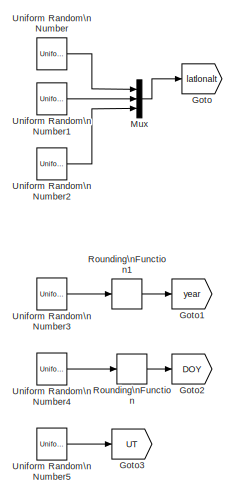
[diagram: root canvas - part 1/2, top left region]
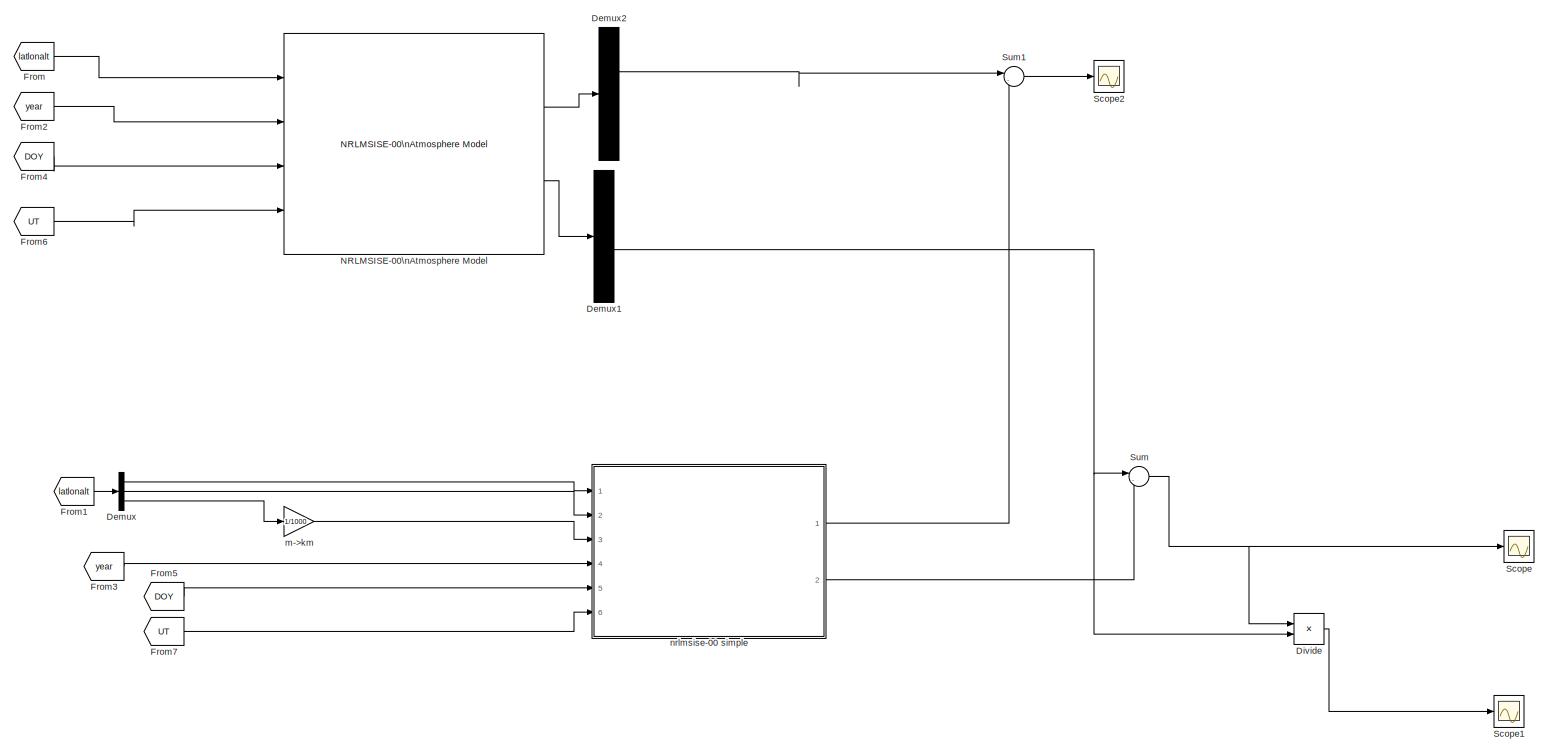
[diagram: root canvas - part 2/2, most of the canvas]
MODEL check_sfunc_nrlmsise00_3
KIND model
BLOCK [Demux] Demux
  DisplayOption = bar
  Outputs = 3
  Ports = [1, 3]
  SID = 23
BLOCK [Demux] Demux1
  DisplayOption = bar
  Outputs = 9
  Ports = [1, 9]
  SID = 52
BLOCK [Demux] Demux2
  DisplayOption = bar
  Outputs = 2
  Ports = [1, 2]
  SID = 91
BLOCK [Product] Divide
  InputSameDT = off
  Inputs = */
  OutDataTypeStr = Inherit: Inherit via internal rule
  Ports = [2, 1]
  RndMeth = Floor
  SID = 67
  SaturateOnIntegerOverflow = off
BLOCK [From] From
  GotoTag = latlonalt
  SID = 21
BLOCK [From] From1
  GotoTag = latlonalt
  SID = 22
BLOCK [From] From2
  GotoTag = year
  SID = 24
BLOCK [From] From3
  GotoTag = year
  SID = 25
BLOCK [From] From4
  GotoTag = DOY
  SID = 26
BLOCK [From] From5
  GotoTag = DOY
  SID = 27
BLOCK [From] From6
  GotoTag = UT
  SID = 28
BLOCK [From] From7
  GotoTag = UT
  SID = 29
BLOCK [Goto] Goto
  GotoTag = latlonalt
  SID = 6
  TagVisibility = local
BLOCK [Goto] Goto1
  GotoTag = year
  SID = 7
  TagVisibility = local
BLOCK [Goto] Goto2
  GotoTag = DOY
  SID = 8
  TagVisibility = local
BLOCK [Goto] Goto3
  GotoTag = UT
  SID = 10
  TagVisibility = local
BLOCK [Mux] Mux
  DisplayOption = bar
  Inputs = 3
  Ports = [3, 1]
  SID = 57
BLOCK [Reference] NRLMSISE-00\nAtmosphere Model  REF=aerolibatmos2/NRLMSISE-00\nAtmosphere Model
  Ports = [4, 2]
  SID = 1
  SourceBlock = aerolibatmos2/NRLMSISE-00\nAtmosphere Model
  SourceType = NRLMSISE-00 Model
  action = Warning
  flags = ones(1,23)
  flags_input = Internal
  flux_ap_input = off
  lst_input = off
  oxygen_in = off
  units = Metric (MKS)
BLOCK [Rounding] Rounding\nFunction
  SID = 71
BLOCK [Rounding] Rounding\nFunction1
  SID = 113
BLOCK [Scope] Scope
  DataFormat = StructureWithTime
  Floating = off
  LimitDataPoints = off
  NumInputPorts = 1
  Ports = [1]
  SID = 56
  SampleTime = 0
  YMax = 2.25e-018
  YMin = -1e-018
BLOCK [Scope] Scope1
  DataFormat = StructureWithTime
  Floating = off
  LimitDataPoints = off
  NumInputPorts = 1
  Ports = [1]
  SID = 69
  SampleTime = 0
  SaveName = ScopeData1
  YMax = 3e-007
  YMin = -5e-007
BLOCK [Scope] Scope2
  DataFormat = StructureWithTime
  Floating = off
  LimitDataPoints = off
  NumInputPorts = 1
  Ports = [1]
  SID = 89
  SampleTime = 0
  SaveName = ScopeData2
  YMax = 0.000125
  YMin = -0.0002
BLOCK [Sum] Sum
  IconShape = round
  InputSameDT = off
  Inputs = |-+
  OutDataTypeStr = Inherit: Inherit via internal rule
  Ports = [2, 1]
  SID = 53
  SaturateOnIntegerOverflow = off
BLOCK [Sum] Sum1
  IconShape = round
  InputSameDT = off
  Inputs = |-+
  OutDataTypeStr = Inherit: Inherit via internal rule
  Ports = [2, 1]
  SID = 90
  SaturateOnIntegerOverflow = off
BLOCK [UniformRandomNumber] Uniform Random\nNumber
  Maximum = 90
  Minimum = -90
  SID = 54
  SampleTime = 0.1
  Seed = -1
BLOCK [UniformRandomNumber] Uniform Random\nNumber1
  Maximum = 360
  Minimum = 0
  SID = 58
  SampleTime = 0.1
  Seed = -2
BLOCK [UniformRandomNumber] Uniform Random\nNumber2
  Maximum = 800000
  Minimum = 300000
  SID = 59
  SampleTime = 0.1
  Seed = -3
BLOCK [UniformRandomNumber] Uniform Random\nNumber3
  Maximum = 2050
  Minimum = 1950
  SID = 60
  SampleTime = 0.1
  Seed = -4
BLOCK [UniformRandomNumber] Uniform Random\nNumber4
  Maximum = 365
  Minimum = 0
  SID = 61
  SampleTime = 0.1
  Seed = -5
BLOCK [UniformRandomNumber] Uniform Random\nNumber5
  Maximum = 86400
  Minimum = 0
  SID = 63
  SampleTime = 0.1
  Seed = -6
BLOCK [Gain] m->km
  Gain = 1/1000
  OutDataTypeStr = Inherit: Inherit via internal rule
  ParamDataTypeStr = Inherit: Inherit via internal rule
  SID = 49
  SaturateOnIntegerOverflow = off
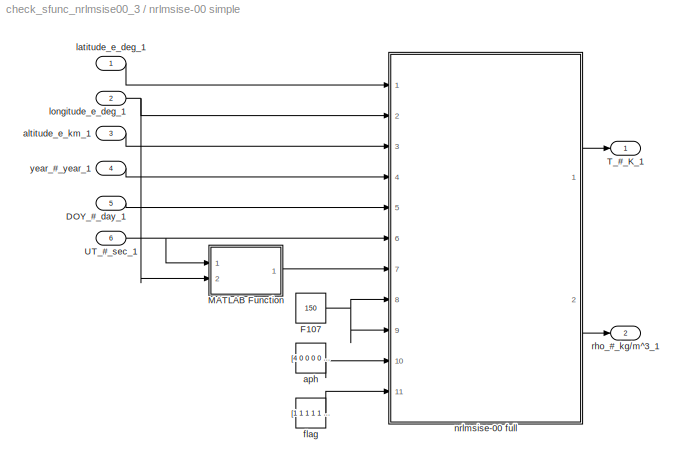
BLOCK [SubSystem] nrlmsise-00 simple
  FunctionWithSeparateData = off
  MaskHideContents = off
  MinAlgLoopOccurrences = off
  Opaque = off
  Ports = [6, 2]
  PropExecContextOutsideSubsystem = off
  RTWSystemCode = Auto
  RequestExecContextInheritance = off
  SID = 104
BLOCK [Inport] nrlmsise-00 simple/DOY_#_day_1
  IconDisplay = Port number
  Port = 5
  SID = 110
BLOCK [Constant] nrlmsise-00 simple/F107
  SID = 72
  Value = 150
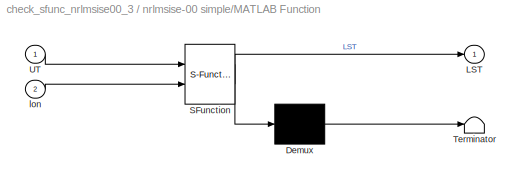
BLOCK [SubSystem] nrlmsise-00 simple/MATLAB Function
  ErrorFcn = Stateflow.Translate.translate
  FunctionWithSeparateData = off
  MaskDescription = Embedded MATLAB block
  MaskDisplay = bgColor = Simulink.Root.ColorString2Rgb(get_param(gcbh, 'BackgroundColor')); image(imread('private/eml_membrane_16.png','png','BackgroundColor',bgColor(1:3)),'center'); disp([10 10 'fcn']);
  MaskHideContents = off
  MaskIconFrame = on
  MaskIconOpaque = off
  MaskIconRotate = none
  MaskIconUnits = normalized
  MaskPortRotate = default
  MaskSelfModifiable = on
  MaskType = Stateflow
  MinAlgLoopOccurrences = off
  Opaque = off
  PermitHierarchicalResolution = ExplicitOnly
  Ports = [2, 1]
  PropExecContextOutsideSubsystem = off
  RTWSystemCode = Auto
  RequestExecContextInheritance = off
  SFBlockType = MATLAB Function
  SID = 74
  TreatAsAtomicUnit = on
BLOCK [Demux] nrlmsise-00 simple/MATLAB Function/ Demux 
  Outputs = 1
  Ports = [1, 1]
  SID = 74::15
BLOCK [S-Function] nrlmsise-00 simple/MATLAB Function/ SFunction 
  EnableBusSupport = on
  FunctionName = sf_sfun
  PortCounts = [2 2]
  Ports = [2, 2]
  SID = 74::14
  Tag = Stateflow S-Function check_sfunc_nrlmsise00_3 2
BLOCK [Terminator] nrlmsise-00 simple/MATLAB Function/ Terminator 
  SID = 74::17
BLOCK [Outport] nrlmsise-00 simple/MATLAB Function/LST
  IconDisplay = Port number
  SID = 74::5
BLOCK [Inport] nrlmsise-00 simple/MATLAB Function/UT
  IconDisplay = Port number
  SID = 74::1
BLOCK [Inport] nrlmsise-00 simple/MATLAB Function/lon
  IconDisplay = Port number
  Port = 2
  SID = 74::18
BLOCK [Outport] nrlmsise-00 simple/T_#_K_1
  IconDisplay = Port number
  SID = 108
BLOCK [Inport] nrlmsise-00 simple/UT_#_sec_1
  IconDisplay = Port number
  Port = 6
  SID = 111
BLOCK [Inport] nrlmsise-00 simple/altitude_e_km_1
  IconDisplay = Port number
  Port = 3
  SID = 107
BLOCK [Constant] nrlmsise-00 simple/aph
  SID = 92
  Value = [4 0 0 0 0 0 0]
BLOCK [Constant] nrlmsise-00 simple/flag
  SID = 93
  Value = [1 1 1 1 1 1 1 1 1 1 1 1 1 1 1 1 1 1 1 1 1 1 1]
BLOCK [Inport] nrlmsise-00 simple/latitude_e_deg_1
  IconDisplay = Port number
  SID = 105
BLOCK [Inport] nrlmsise-00 simple/longitude_e_deg_1
  IconDisplay = Port number
  Port = 2
  SID = 106
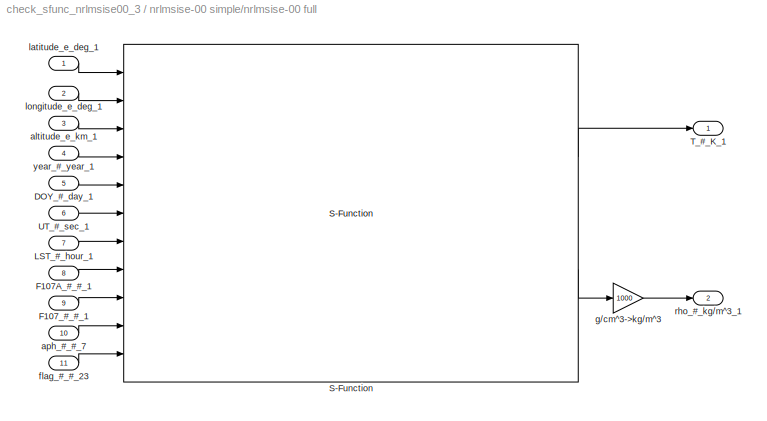
BLOCK [SubSystem] nrlmsise-00 simple/nrlmsise-00 full
  FunctionWithSeparateData = off
  MaskHideContents = off
  MinAlgLoopOccurrences = off
  Opaque = off
  Ports = [11, 2]
  PropExecContextOutsideSubsystem = off
  RTWSystemCode = Auto
  RequestExecContextInheritance = off
  SID = 75
BLOCK [Inport] nrlmsise-00 simple/nrlmsise-00 full/DOY_#_day_1
  IconDisplay = Port number
  Port = 5
  SID = 81
BLOCK [Inport] nrlmsise-00 simple/nrlmsise-00 full/F107A_#_#_1
  IconDisplay = Port number
  Port = 8
  SID = 84
BLOCK [Inport] nrlmsise-00 simple/nrlmsise-00 full/F107_#_#_1
  IconDisplay = Port number
  Port = 9
  SID = 86
BLOCK [Inport] nrlmsise-00 simple/nrlmsise-00 full/LST_#_hour_1
  IconDisplay = Port number
  Port = 7
  SID = 83
BLOCK [S-Function] nrlmsise-00 simple/nrlmsise-00 full/S-Function
  EnableBusSupport = off
  FunctionName = sfunc_nrlmsise00
  Ports = [11, 2]
  SID = 45
BLOCK [Outport] nrlmsise-00 simple/nrlmsise-00 full/T_#_K_1
  IconDisplay = Port number
  SID = 79
BLOCK [Inport] nrlmsise-00 simple/nrlmsise-00 full/UT_#_sec_1
  IconDisplay = Port number
  Port = 6
  SID = 82
BLOCK [Inport] nrlmsise-00 simple/nrlmsise-00 full/altitude_e_km_1
  IconDisplay = Port number
  Port = 3
  SID = 78
BLOCK [Inport] nrlmsise-00 simple/nrlmsise-00 full/aph_#_#_7
  IconDisplay = Port number
  Port = 10
  SID = 87
BLOCK [Inport] nrlmsise-00 simple/nrlmsise-00 full/flag_#_#_23
  IconDisplay = Port number
  Port = 11
  SID = 88
BLOCK [Gain] nrlmsise-00 simple/nrlmsise-00 full/g//cm^3->kg//m^3
  Gain = 1000
  OutDataTypeStr = Inherit: Inherit via internal rule
  ParamDataTypeStr = Inherit: Inherit via internal rule
  SID = 51
  SaturateOnIntegerOverflow = off
BLOCK [Inport] nrlmsise-00 simple/nrlmsise-00 full/latitude_e_deg_1
  IconDisplay = Port number
  SID = 76
BLOCK [Inport] nrlmsise-00 simple/nrlmsise-00 full/longitude_e_deg_1
  IconDisplay = Port number
  Port = 2
  SID = 77
BLOCK [Outport] nrlmsise-00 simple/nrlmsise-00 full/rho_#_kg//m^3_1
  IconDisplay = Port number
  Port = 2
  SID = 85
BLOCK [Inport] nrlmsise-00 simple/nrlmsise-00 full/year_#_year_1
  IconDisplay = Port number
  Port = 4
  SID = 80
BLOCK [Outport] nrlmsise-00 simple/rho_#_kg//m^3_1
  IconDisplay = Port number
  Port = 2
  SID = 112
BLOCK [Inport] nrlmsise-00 simple/year_#_year_1
  IconDisplay = Port number
  Port = 4
  SID = 109
NET Demux1:6 -> Divide:2, Sum:1
LINE Demux2:1 -> Sum1:1
LINE Demux:1 -> nrlmsise-00 simple:1
LINE Demux:2 -> nrlmsise-00 simple:2
LINE Demux:3 -> m->km:1
LINE Divide:1 -> Scope1:1
LINE From1:1 -> Demux:1
LINE From2:1 -> NRLMSISE-00\nAtmosphere Model:2
LINE From3:1 -> nrlmsise-00 simple:4
LINE From4:1 -> NRLMSISE-00\nAtmosphere Model:3
LINE From5:1 -> nrlmsise-00 simple:5
LINE From6:1 -> NRLMSISE-00\nAtmosphere Model:4
LINE From7:1 -> nrlmsise-00 simple:6
LINE From:1 -> NRLMSISE-00\nAtmosphere Model:1
LINE Mux:1 -> Goto:1
LINE NRLMSISE-00\nAtmosphere Model:1 -> Demux2:1
LINE NRLMSISE-00\nAtmosphere Model:2 -> Demux1:1
LINE Rounding\nFunction1:1 -> Goto1:1
LINE Rounding\nFunction:1 -> Goto2:1
LINE Sum1:1 -> Scope2:1
NET Sum:1 -> Divide:1, Scope:1
LINE Uniform Random\nNumber1:1 -> Mux:2
LINE Uniform Random\nNumber2:1 -> Mux:3
LINE Uniform Random\nNumber3:1 -> Rounding\nFunction1:1
LINE Uniform Random\nNumber4:1 -> Rounding\nFunction:1
LINE Uniform Random\nNumber5:1 -> Goto3:1
LINE Uniform Random\nNumber:1 -> Mux:1
LINE m->km:1 -> nrlmsise-00 simple:3
LINE nrlmsise-00 simple/DOY_#_day_1:1 -> nrlmsise-00 simple/nrlmsise-00 full:5
NET nrlmsise-00 simple/F107:1 -> nrlmsise-00 simple/nrlmsise-00 full:8, nrlmsise-00 simple/nrlmsise-00 full:9
LINE nrlmsise-00 simple/MATLAB Function/ Demux :1 -> nrlmsise-00 simple/MATLAB Function/ Terminator :1
LINE nrlmsise-00 simple/MATLAB Function/ SFunction :1 -> nrlmsise-00 simple/MATLAB Function/ Demux :1
LINE nrlmsise-00 simple/MATLAB Function/ SFunction :2 -> nrlmsise-00 simple/MATLAB Function/LST:1
LINE nrlmsise-00 simple/MATLAB Function/UT:1 -> nrlmsise-00 simple/MATLAB Function/ SFunction :1
LINE nrlmsise-00 simple/MATLAB Function/lon:1 -> nrlmsise-00 simple/MATLAB Function/ SFunction :2
LINE nrlmsise-00 simple/MATLAB Function:1 -> nrlmsise-00 simple/nrlmsise-00 full:7
NET nrlmsise-00 simple/UT_#_sec_1:1 -> nrlmsise-00 simple/MATLAB Function:1, nrlmsise-00 simple/nrlmsise-00 full:6
LINE nrlmsise-00 simple/altitude_e_km_1:1 -> nrlmsise-00 simple/nrlmsise-00 full:3
LINE nrlmsise-00 simple/aph:1 -> nrlmsise-00 simple/nrlmsise-00 full:10
LINE nrlmsise-00 simple/flag:1 -> nrlmsise-00 simple/nrlmsise-00 full:11
LINE nrlmsise-00 simple/latitude_e_deg_1:1 -> nrlmsise-00 simple/nrlmsise-00 full:1
NET nrlmsise-00 simple/longitude_e_deg_1:1 -> nrlmsise-00 simple/MATLAB Function:2, nrlmsise-00 simple/nrlmsise-00 full:2
LINE nrlmsise-00 simple/nrlmsise-00 full/DOY_#_day_1:1 -> nrlmsise-00 simple/nrlmsise-00 full/S-Function:5
LINE nrlmsise-00 simple/nrlmsise-00 full/F107A_#_#_1:1 -> nrlmsise-00 simple/nrlmsise-00 full/S-Function:8
LINE nrlmsise-00 simple/nrlmsise-00 full/F107_#_#_1:1 -> nrlmsise-00 simple/nrlmsise-00 full/S-Function:9
LINE nrlmsise-00 simple/nrlmsise-00 full/LST_#_hour_1:1 -> nrlmsise-00 simple/nrlmsise-00 full/S-Function:7
LINE nrlmsise-00 simple/nrlmsise-00 full/S-Function:1 -> nrlmsise-00 simple/nrlmsise-00 full/T_#_K_1:1
LINE nrlmsise-00 simple/nrlmsise-00 full/S-Function:2 -> nrlmsise-00 simple/nrlmsise-00 full/g//cm^3->kg//m^3:1
LINE nrlmsise-00 simple/nrlmsise-00 full/UT_#_sec_1:1 -> nrlmsise-00 simple/nrlmsise-00 full/S-Function:6
LINE nrlmsise-00 simple/nrlmsise-00 full/altitude_e_km_1:1 -> nrlmsise-00 simple/nrlmsise-00 full/S-Function:3
LINE nrlmsise-00 simple/nrlmsise-00 full/aph_#_#_7:1 -> nrlmsise-00 simple/nrlmsise-00 full/S-Function:10
LINE nrlmsise-00 simple/nrlmsise-00 full/flag_#_#_23:1 -> nrlmsise-00 simple/nrlmsise-00 full/S-Function:11
LINE nrlmsise-00 simple/nrlmsise-00 full/g//cm^3->kg//m^3:1 -> nrlmsise-00 simple/nrlmsise-00 full/rho_#_kg//m^3_1:1
LINE nrlmsise-00 simple/nrlmsise-00 full/latitude_e_deg_1:1 -> nrlmsise-00 simple/nrlmsise-00 full/S-Function:1
LINE nrlmsise-00 simple/nrlmsise-00 full/longitude_e_deg_1:1 -> nrlmsise-00 simple/nrlmsise-00 full/S-Function:2
LINE nrlmsise-00 simple/nrlmsise-00 full/year_#_year_1:1 -> nrlmsise-00 simple/nrlmsise-00 full/S-Function:4
LINE nrlmsise-00 simple/nrlmsise-00 full:1 -> nrlmsise-00 simple/T_#_K_1:1
LINE nrlmsise-00 simple/nrlmsise-00 full:2 -> nrlmsise-00 simple/rho_#_kg//m^3_1:1
LINE nrlmsise-00 simple/year_#_year_1:1 -> nrlmsise-00 simple/nrlmsise-00 full:4
LINE nrlmsise-00 simple:1 -> Sum1:2
LINE nrlmsise-00 simple:2 -> Sum:2
note: NET lines group one-source signal fan-out (src -> all destinations, sorted); 1:1 wires keep LINE
CHART nrlmsise-00 simple/MATLAB Function states=1 transitions=1
  STATE_LABEL 'eML_blk_kernel()'
